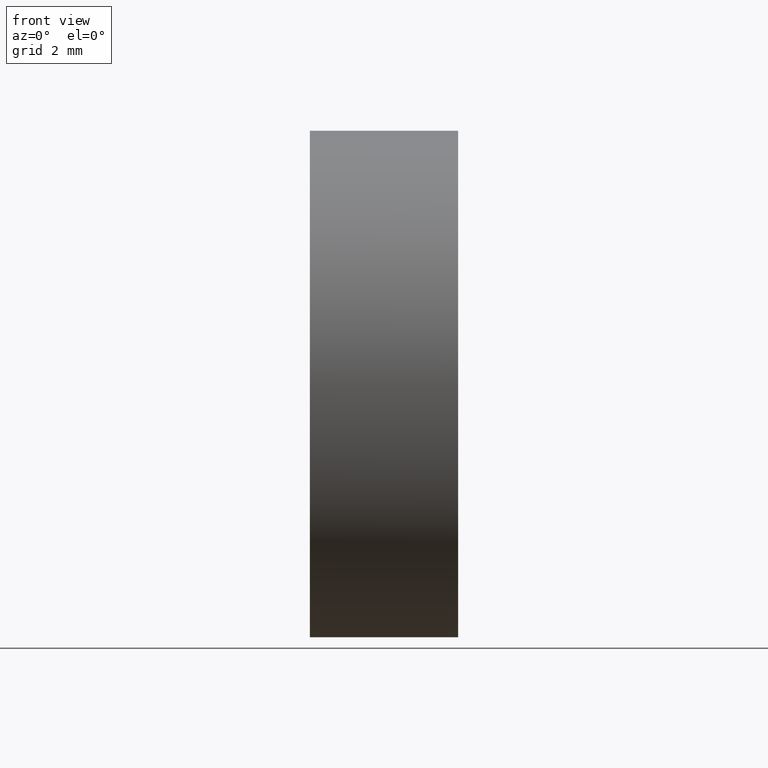
[diagram: clean part render]
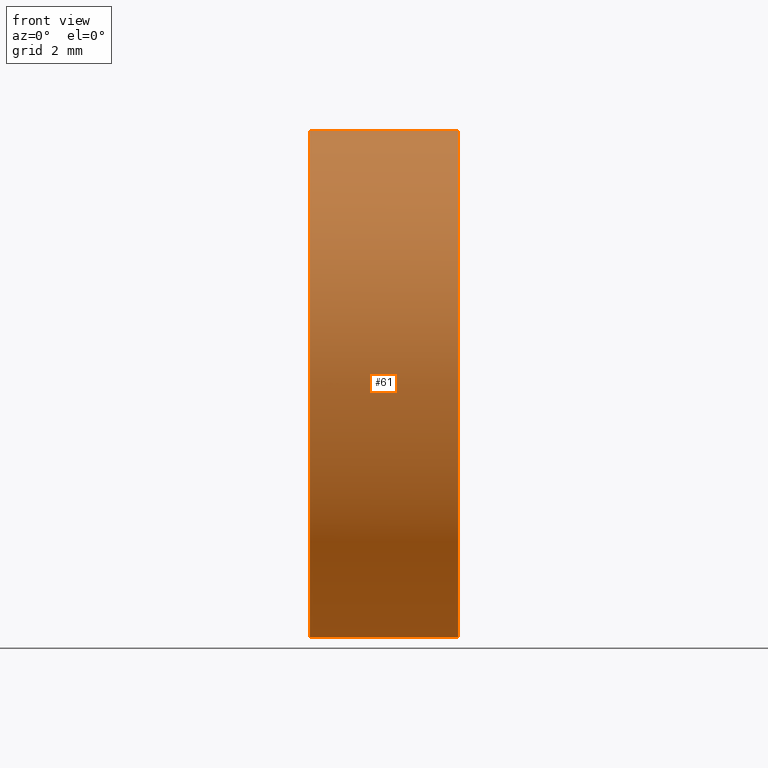
[diagram: same view with one face highlighted and labeled with its STEP entity id]
A machine part, front view. The second image highlights one B-rep face of the part: STEP entity #61.
In plain terms, the highlighted cylindrical surface (partial cylindrical patch) has radius 6.25 mm, axis along (-1, -0, -0).
Its self-contained STEP definition (entity closure, byte-faithful):
#10 = CARTESIAN_POINT ( 'NONE',  ( 61.20459128169575500, 34.68901056168621700, 0.0000000000000000000 ) ) ;
#11 = CARTESIAN_POINT ( 'NONE',  ( 54.49257150108255100, 34.68901056168621700, 0.0000000000000000000 ) ) ;
#12 = CARTESIAN_POINT ( 'NONE',  ( 57.54632776745975800, 34.68901056168621700, 6.249999999999998200 ) ) ;
#15 = CARTESIAN_POINT ( 'NONE',  ( 57.54632776745975800, 34.68901056168621700, -6.249999999999998200 ) ) ;
#16 = AXIS2_PLACEMENT_3D ( 'NONE', #11, #135, #76 ) ;
#20 = CIRCLE ( 'NONE', #141, 6.250000000000005300 ) ;
#23 = VECTOR ( 'NONE', #29, 1000.000000000000000 ) ;
#26 = ORIENTED_EDGE ( 'NONE', *, *, #71, .T. ) ;
#29 = DIRECTION ( 'NONE',  ( -1.000000000000000000, -0.0000000000000000000, -0.0000000000000000000 ) ) ;
#38 = CIRCLE ( 'NONE', #109, 6.249999999999998200 ) ;
#39 = CARTESIAN_POINT ( 'NONE',  ( 61.20459128169575500, 34.68901056168621700, 6.250000000000004400 ) ) ;
#43 = CARTESIAN_POINT ( 'NONE',  ( 61.20459128169575500, 34.68901056168621700, 0.0000000000000000000 ) ) ;
#45 = CARTESIAN_POINT ( 'NONE',  ( 57.54632776745975800, 34.68901056168621700, 0.0000000000000000000 ) ) ;
#53 = ORIENTED_EDGE ( 'NONE', *, *, #168, .T. ) ;
#59 = ORIENTED_EDGE ( 'NONE', *, *, #139, .F. ) ;
#60 = FACE_OUTER_BOUND ( 'NONE', #146, .T. ) ;
#61 = ADVANCED_FACE ( 'NONE', ( #60 ), #85, .T. ) ;
#66 = DIRECTION ( 'NONE',  ( -1.000000000000000000, -0.0000000000000000000, -0.0000000000000000000 ) ) ;
#71 = EDGE_CURVE ( 'NONE', #136, #172, #20, .T. ) ;
#75 = ORIENTED_EDGE ( 'NONE', *, *, #180, .F. ) ;
#76 = DIRECTION ( 'NONE',  ( 0.0000000000000000000, 0.0000000000000000000, 1.000000000000000000 ) ) ;
#79 = CARTESIAN_POINT ( 'NONE',  ( 54.49257150108255100, 34.68901056168621700, -6.250000000000001800 ) ) ;
#82 = AXIS2_PLACEMENT_3D ( 'NONE', #43, #66, #158 ) ;
#85 = CYLINDRICAL_SURFACE ( 'NONE', #16, 6.250000000000001800 ) ;
#91 = DIRECTION ( 'NONE',  ( 0.0000000000000000000, 0.0000000000000000000, 1.000000000000000000 ) ) ;
#93 = DIRECTION ( 'NONE',  ( -1.000000000000000000, -0.0000000000000000000, -0.0000000000000000000 ) ) ;
#94 = EDGE_CURVE ( 'NONE', #172, #106, #131, .T. ) ;
#103 = DIRECTION ( 'NONE',  ( -1.000000000000000000, -0.0000000000000000000, -0.0000000000000000000 ) ) ;
#104 = DIRECTION ( 'NONE',  ( 0.0000000000000000000, 0.0000000000000000000, 1.000000000000000000 ) ) ;
#106 = VERTEX_POINT ( 'NONE', #39 ) ;
#109 = AXIS2_PLACEMENT_3D ( 'NONE', #45, #93, #104 ) ;
#121 = DIRECTION ( 'NONE',  ( -1.000000000000000000, -0.0000000000000000000, -0.0000000000000000000 ) ) ;
#128 = LINE ( 'NONE', #79, #23 ) ;
#131 = CIRCLE ( 'NONE', #82, 6.250000000000005300 ) ;
#134 = CARTESIAN_POINT ( 'NONE',  ( 61.20459128169575500, 34.68901056168621700, -6.250000000000004400 ) ) ;
#135 = DIRECTION ( 'NONE',  ( -1.000000000000000000, -0.0000000000000000000, -0.0000000000000000000 ) ) ;
#136 = VERTEX_POINT ( 'NONE', #134 ) ;
#139 = EDGE_CURVE ( 'NONE', #136, #178, #128, .T. ) ;
#141 = AXIS2_PLACEMENT_3D ( 'NONE', #10, #121, #91 ) ;
#146 = EDGE_LOOP ( 'NONE', ( #59, #26, #183, #53, #75 ) ) ;
#151 = CARTESIAN_POINT ( 'NONE',  ( 54.49257150108255100, 34.68901056168621700, 6.250000000000001800 ) ) ;
#154 = LINE ( 'NONE', #151, #181 ) ;
#158 = DIRECTION ( 'NONE',  ( 0.0000000000000000000, 0.0000000000000000000, 1.000000000000000000 ) ) ;
#161 = VERTEX_POINT ( 'NONE', #12 ) ;
#168 = EDGE_CURVE ( 'NONE', #106, #161, #154, .T. ) ;
#172 = VERTEX_POINT ( 'NONE', #176 ) ;
#176 = CARTESIAN_POINT ( 'NONE',  ( 61.20459128169575500, 28.43901056168621700, -7.654042494670949700E-016 ) ) ;
#178 = VERTEX_POINT ( 'NONE', #15 ) ;
#180 = EDGE_CURVE ( 'NONE', #178, #161, #38, .T. ) ;
#181 = VECTOR ( 'NONE', #103, 1000.000000000000000 ) ;
#183 = ORIENTED_EDGE ( 'NONE', *, *, #94, .T. ) ;